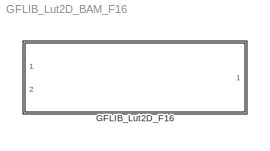
MODEL GFLIB_Lut2D_BAM_F16
KIND model
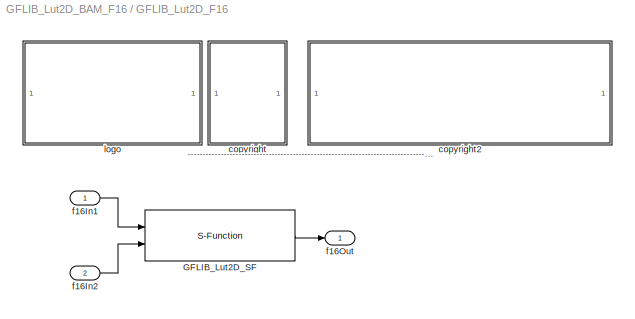
BLOCK [SubSystem] GFLIB_Lut2D_F16
  Ports = [2, 1]
  RequestExecContextInheritance = off
  SID = 1
BLOCK [S-Function] GFLIB_Lut2D_F16/GFLIB_Lut2D_SF
  EnableBusSupport = off
  FunctionName = GFLIB_Lut2D_SF_F16
  Parameters = u16ShamOffset1,u16ShamOffset2,pf16Table,s16MidIdx
  Ports = [2, 1]
  SID = 4
BLOCK [SubSystem] GFLIB_Lut2D_F16/<copyright redacted>
  Ports = []
  RequestExecContextInheritance = off
  SID = 5
BLOCK [SubSystem] GFLIB_Lut2D_F16/copyright2
  Ports = []
  RequestExecContextInheritance = off
  SID = 6
BLOCK [Inport] GFLIB_Lut2D_F16/f16In1
  IconDisplay = Port number
  SID = 2
BLOCK [Inport] GFLIB_Lut2D_F16/f16In2
  IconDisplay = Port number
  Port = 2
  SID = 3
BLOCK [Outport] GFLIB_Lut2D_F16/f16Out
  IconDisplay = Port number
  SID = 8
BLOCK [SubSystem] GFLIB_Lut2D_F16/logo
  Ports = []
  RequestExecContextInheritance = off
  SID = 7
ANNOTATION GFLIB_Lut2D_F16: ---------------------------------------------------------------------------------------------------------------------------------------------------------------------------------------------------
LINE GFLIB_Lut2D_F16/GFLIB_Lut2D_SF:1 -> GFLIB_Lut2D_F16/f16Out:1
LINE GFLIB_Lut2D_F16/f16In1:1 -> GFLIB_Lut2D_F16/GFLIB_Lut2D_SF:1
LINE GFLIB_Lut2D_F16/f16In2:1 -> GFLIB_Lut2D_F16/GFLIB_Lut2D_SF:2
